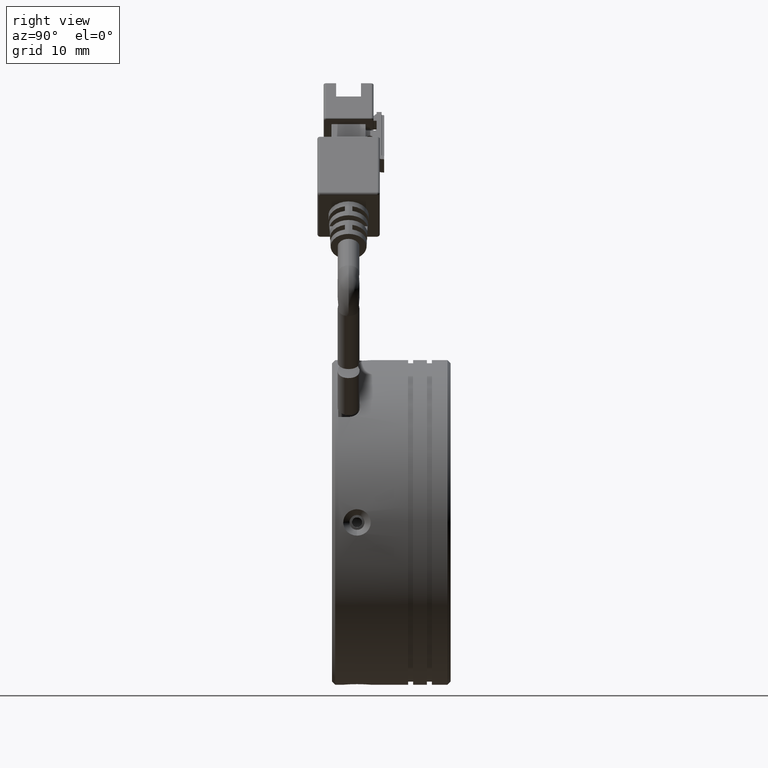
[diagram: clean part render]
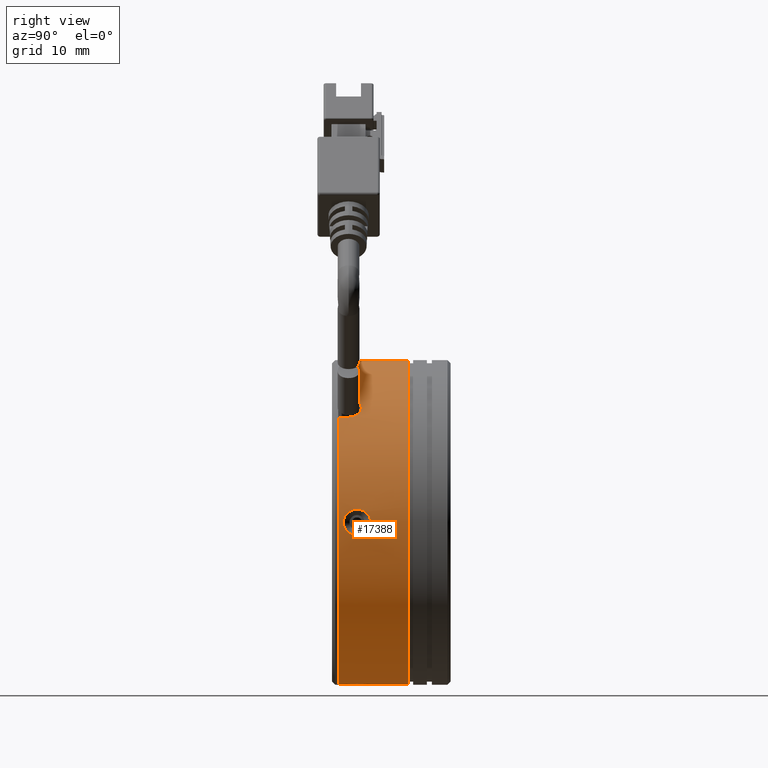
[diagram: same view with one face highlighted and labeled with its STEP entity id]
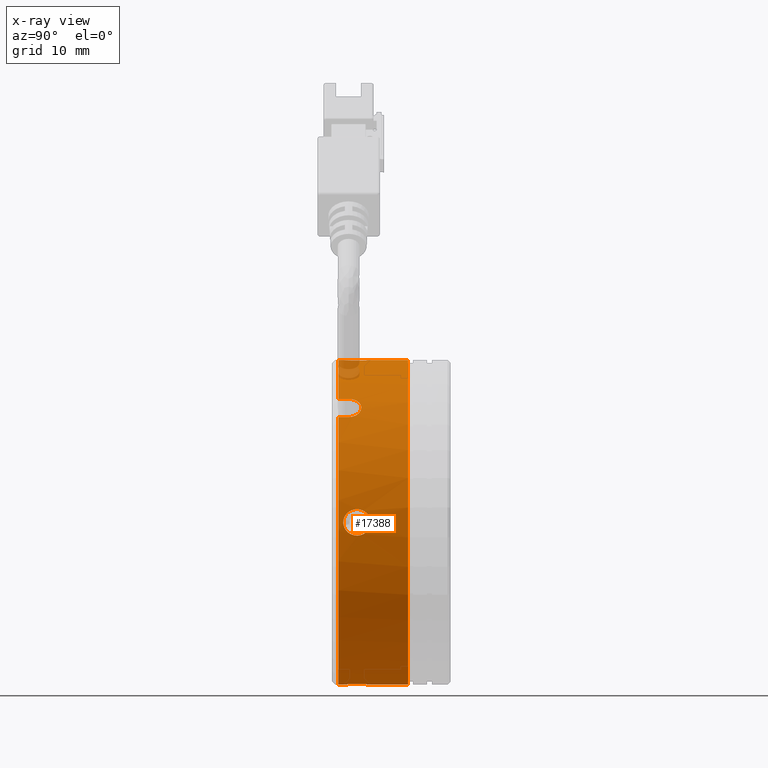
[diagram: x-ray of the same camera — body ghosted, the highlighted face saturated]
A machine part, right view. The second image highlights one B-rep face of the part: STEP entity #17388.
The next image is the same camera in x-ray: the body ghosted, the highlighted face saturated — about 2% of this face is hidden behind the body in this view.
In plain terms, the highlighted cylindrical surface (partial cylindrical patch) has radius 26 mm, axis along (-0, -1, -0).
Its self-contained STEP definition (entity closure, byte-faithful):
#4 = CARTESIAN_POINT ( 'NONE',  ( 0.5700417114842225600, -3.661755276704226100, 25.96174129452807500 ) ) ;
#29 = CARTESIAN_POINT ( 'NONE',  ( 0.7632741512655253400, -0.5833941748268457500, -25.95050076363494900 ) ) ;
#148 = CARTESIAN_POINT ( 'NONE',  ( 17.35017317992077300, -1.332335679312229200, 18.57614296503430800 ) ) ;
#279 = CARTESIAN_POINT ( 'NONE',  ( 25.07068517281820500, -2.019923829761831600, 2.113921649513059700 ) ) ;
#431 = CARTESIAN_POINT ( 'NONE',  ( 25.07900943862740200, -1.324124604772642300, 2.009934761703067600 ) ) ;
#594 = CARTESIAN_POINT ( 'NONE',  ( 25.15116355975101200, 0.1072962245698728000, -0.5570993038350605700 ) ) ;
#720 = CARTESIAN_POINT ( 'NONE',  ( 25.07068517281824800, -2.019923829761832000, -2.113921649512511300 ) ) ;
#761 = CARTESIAN_POINT ( 'NONE',  ( 25.07068517281840800, -1.877440404689787900, -2.113921649512712000 ) ) ;
#887 = CARTESIAN_POINT ( 'NONE',  ( 25.15184026195136700, -4.158879317824578900, -0.5676062594884399000 ) ) ;
#1051 = CARTESIAN_POINT ( 'NONE',  ( 25.08682708409655500, -2.980469916977110500, 1.906428505206584600 ) ) ;
#2252 = DIRECTION ( 'NONE',  ( -0.0000000000000000000, -1.000000000000000000, -0.0000000000000000000 ) ) ;
#2349 = CARTESIAN_POINT ( 'NONE',  ( -0.7007340623137251500, -4.219923829767420600, -26.00000000000000000 ) ) ;
#2524 = CARTESIAN_POINT ( 'NONE',  ( 1.257514202097226100, -2.302827202201920300, -25.91500590520640700 ) ) ;
#2562 = B_SPLINE_CURVE_WITH_KNOTS ( 'NONE', 3,
 ( #13884, #10048, #21444, #47777, #25233, #2651, #29048, #6435, #32836, #10207, #36626, #14043, #40384, #17831, #44184, #21604 ),
 .UNSPECIFIED., .F., .F.,
 ( 4, 2, 2, 2, 2, 2, 2, 4 ),
 ( 0.006753514958620318100, 0.007175384245134818600, 0.007597253531649319200, 0.008440992104678319400, 0.008862861391192820800, 0.009284730677707318800, 0.009706599964221820200, 0.01012846925073632000 ),
 .UNSPECIFIED. ) ;
#2651 = CARTESIAN_POINT ( 'NONE',  ( 0.2381175052354198300, -0.1075802680053533400, 25.97878341157911200 ) ) ;
#3283 = CARTESIAN_POINT ( 'NONE',  ( 17.91300266529334800, -1.396572323487726500, 18.00612816173481100 ) ) ;
#3810 = CARTESIAN_POINT ( 'NONE',  ( 0.2348341411667761400, -3.917505517468462100, 25.97789389347685000 ) ) ;
#3835 = CARTESIAN_POINT ( 'NONE',  ( 0.4644389933508281100, -0.2857913554150947600, -25.96734857976177200 ) ) ;
#4032 = EDGE_LOOP ( 'NONE', ( #7381, #28889 ) ) ;
#4226 = CARTESIAN_POINT ( 'NONE',  ( 25.09142205960207100, -0.9348551996306534400, 1.843666292746363600 ) ) ;
#4379 = CARTESIAN_POINT ( 'NONE',  ( 25.13974116819224500, -0.04921296226475328100, -0.9495289102050434900 ) ) ;
#4502 = CARTESIAN_POINT ( 'NONE',  ( 25.07177076299983700, -2.302595625451821200, -2.100731701423661500 ) ) ;
#4653 = CARTESIAN_POINT ( 'NONE',  ( 25.15677872803126300, -4.220118727477475000, 0.1377067721046466300 ) ) ;
#4816 = CARTESIAN_POINT ( 'NONE',  ( 25.07598192525610900, -2.582211107856319000, 2.048122727477555700 ) ) ;
#5073 = VERTEX_POINT ( 'NONE', #11354 ) ;
#6147 = CARTESIAN_POINT ( 'NONE',  ( -0.8432364767453765000, -4.219923829767406400, -26.00000000000000400 ) ) ;
#6167 = EDGE_CURVE ( 'NONE', #48007, #34595, #18276, .T. ) ;
#6312 = CARTESIAN_POINT ( 'NONE',  ( 1.270685172815217500, -2.019923829761831600, -25.91392164955970400 ) ) ;
#6435 = CARTESIAN_POINT ( 'NONE',  ( 0.7621741821133705100, -0.5821168946738781700, 25.95056767799188800 ) ) ;
#6798 = CARTESIAN_POINT ( 'NONE',  ( 16.02670005985450900, -5.019923829761827600, 19.78396424509234900 ) ) ;
#7066 = CARTESIAN_POINT ( 'NONE',  ( 18.17349000561377500, -1.536640124356303000, 17.73075292991632800 ) ) ;
#7381 = ORIENTED_EDGE ( 'NONE', *, *, #48565, .T. ) ;
#7492 = VECTOR ( 'NONE', #2252, 1000.000000000000000 ) ;
#7567 = CARTESIAN_POINT ( 'NONE',  ( 16.07731900997010000, -2.839832261796470200, 19.74070680745349500 ) ) ;
#7574 = CARTESIAN_POINT ( 'NONE',  ( -0.2756764658807898700, -4.158893288112197200, 25.99507781296181400 ) ) ;
#7599 = CARTESIAN_POINT ( 'NONE',  ( 0.1100547866131151900, -0.05123205639646109100, -25.98283634409786200 ) ) ;
#8006 = CARTESIAN_POINT ( 'NONE',  ( 25.10726322386177900, -0.5834149923285459900, 1.606527624350974100 ) ) ;
#8158 = CARTESIAN_POINT ( 'NONE',  ( 25.12430405033780500, -0.2826984153328857600, -1.303856322866068700 ) ) ;
#8281 = CARTESIAN_POINT ( 'NONE',  ( 25.07900943862742700, -2.715723054750402100, -2.009934761702721700 ) ) ;
#8450 = CARTESIAN_POINT ( 'NONE',  ( 25.15116355975102300, -4.147143884093919700, 0.5570993038342602100 ) ) ;
#8550 = EDGE_CURVE ( 'NONE', #40858, #25983, #21827, .T. ) ;
#8623 = CARTESIAN_POINT ( 'NONE',  ( 25.07068517281202700, -2.162364752792359700, 2.113921649515198500 ) ) ;
#8659 = CARTESIAN_POINT ( 'NONE',  ( -0.8432364767453765000, 6.180076170238170800, 0.0000000000000000000 ) ) ;
#9039 = LINE ( 'NONE', #32684, #26765 ) ;
#9934 = CARTESIAN_POINT ( 'NONE',  ( -0.1485429309996705300, -4.102678716444987800, -25.99103748164974800 ) ) ;
#10048 = CARTESIAN_POINT ( 'NONE',  ( -0.7007340623137375800, 0.1800761702435598200, 26.00000000000000000 ) ) ;
#10207 = CARTESIAN_POINT ( 'NONE',  ( 1.000167844944690700, -0.9342284771793206700, 25.93467912144212000 ) ) ;
#10842 = CARTESIAN_POINT ( 'NONE',  ( 18.40497477395977900, -1.745375409736210900, 17.47909849503531300 ) ) ;
#11010 = CARTESIAN_POINT ( 'NONE',  ( -0.8432364767453733900, -5.019923829761831200, 26.00000000000000400 ) ) ;
#11208 = CARTESIAN_POINT ( 'NONE',  ( 1.257494776038846400, -2.302600439658064600, 25.91500727700114100 ) ) ;
#11237 = CARTESIAN_POINT ( 'NONE',  ( 1.270685172815382700, -1.877459211881043600, -25.91392164955969000 ) ) ;
#11351 = CARTESIAN_POINT ( 'NONE',  ( 16.18688842422260500, -2.462584212436573300, 19.64631195997596100 ) ) ;
#11354 = CARTESIAN_POINT ( 'NONE',  ( -0.8432364767453733900, 0.1800761702435610400, 26.00000000000000400 ) ) ;
#11363 = CARTESIAN_POINT ( 'NONE',  ( -0.8432364767453733900, -4.219923829767225200, 26.00000000000000400 ) ) ;
#11381 = CARTESIAN_POINT ( 'NONE',  ( -0.5580454620580992400, 0.1800761702437680700, -26.00000000000000400 ) ) ;
#11784 = CARTESIAN_POINT ( 'NONE',  ( 25.12411077824685900, -0.2858128282905767500, 1.307701463511026900 ) ) ;
#11925 = CARTESIAN_POINT ( 'NONE',  ( 1.270685172814882200, -2.019923829761832000, 25.91392164955973200 ) ) ;
#11949 = CARTESIAN_POINT ( 'NONE',  ( 25.10731845625776200, -0.5822697731580392900, -1.605702992193580400 ) ) ;
#12078 = CARTESIAN_POINT ( 'NONE',  ( 25.09142205960208800, -3.104992459892392800, -1.843666292746150200 ) ) ;
#12237 = CARTESIAN_POINT ( 'NONE',  ( 25.13974116819227300, -3.990634697259623800, 0.9495289102042204800 ) ) ;
#12447 = DIRECTION ( 'NONE',  ( 0.0000000000000000000, 0.0000000000000000000, -1.000000000000000000 ) ) ;
#12955 = DIRECTION ( 'NONE',  ( 0.0000000000000000000, 1.000000000000000000, 0.0000000000000000000 ) ) ;
#13355 = EDGE_CURVE ( 'NONE', #29738, #46985, #39323, .T. ) ;
#13753 = CARTESIAN_POINT ( 'NONE',  ( 0.4732562434826336200, -3.764367437101978600, -25.96736551312134000 ) ) ;
#13884 = CARTESIAN_POINT ( 'NONE',  ( -0.8432364767453733900, 0.1800761702435610400, 26.00000000000000400 ) ) ;
#13910 = VERTEX_POINT ( 'NONE', #47461 ) ;
#13939 = DIRECTION ( 'NONE',  ( -0.0000000000000000000, -1.000000000000000000, -0.0000000000000000000 ) ) ;
#14043 = CARTESIAN_POINT ( 'NONE',  ( 1.165868342122063500, -1.321731564562086600, 25.92230973960485600 ) ) ;
#14543 = CARTESIAN_POINT ( 'NONE',  ( -0.8432364767453765000, -5.019923829761831200, 0.0000000000000000000 ) ) ;
#14665 = CARTESIAN_POINT ( 'NONE',  ( 18.60346495581549300, -2.018245760449369500, 17.25789427479638100 ) ) ;
#14853 = ORIENTED_EDGE ( 'NONE', *, *, #8550, .T. ) ;
#15022 = CARTESIAN_POINT ( 'NONE',  ( 16.02670272175023300, -3.234566924000275000, 19.78396197527363800 ) ) ;
#15037 = CARTESIAN_POINT ( 'NONE',  ( 1.166694670216930700, -2.715734830182291200, 25.92224619903235100 ) ) ;
#15062 = CARTESIAN_POINT ( 'NONE',  ( 1.205738756102252800, -1.461155198372313000, -25.91915072795833600 ) ) ;
#15137 = VECTOR ( 'NONE', #24207, 1000.000000000000000 ) ;
#15188 = CARTESIAN_POINT ( 'NONE',  ( 16.34851711512582600, -2.123712759211537000, 19.50510933334414800 ) ) ;
#15469 = CARTESIAN_POINT ( 'NONE',  ( 25.07068517281199500, -1.877461657298543600, 2.113921649515466700 ) ) ;
#15623 = CARTESIAN_POINT ( 'NONE',  ( 25.13959851331737700, -0.05125137742007224200, 0.9533277286991627100 ) ) ;
#15783 = CARTESIAN_POINT ( 'NONE',  ( 25.09154899582771800, -0.9315781296035328100, -1.841891277883847900 ) ) ;
#15899 = CARTESIAN_POINT ( 'NONE',  ( 25.10726322386177500, -3.456432667194466300, -1.606527624350964500 ) ) ;
#16059 = CARTESIAN_POINT ( 'NONE',  ( 25.12430405033785200, -3.757149244191791700, 1.303856322865365900 ) ) ;
#16096 = CIRCLE ( 'NONE', #48112, 26.00000000000000400 ) ;
#16500 = CARTESIAN_POINT ( 'NONE',  ( -0.8432364767453765000, -21.81214605198405500, 0.0000000000000000000 ) ) ;
#16667 = VERTEX_POINT ( 'NONE', #11925 ) ;
#16794 = VERTEX_POINT ( 'NONE', #27908 ) ;
#17388 = ADVANCED_FACE ( 'NONE', ( #47102, #25892 ), #41201, .T. ) ;
#17539 = CARTESIAN_POINT ( 'NONE',  ( 0.8492483316489235500, -3.345212303749423900, -25.94496513388958200 ) ) ;
#17678 = EDGE_CURVE ( 'NONE', #24699, #29738, #24637, .T. ) ;
#17831 = CARTESIAN_POINT ( 'NONE',  ( 1.257514202096895900, -1.737020457321812000, 25.91500590520644200 ) ) ;
#17901 = ORIENTED_EDGE ( 'NONE', *, *, #35157, .T. ) ;
#18276 = B_SPLINE_CURVE_WITH_KNOTS ( 'NONE', 3,
 ( #6147, #2349, #28587, #32526, #9934, #36341, #13753, #40095, #17539, #43892, #21325, #47653, #25116, #2524, #28917, #6312 ),
 .UNSPECIFIED., .F., .F.,
 ( 4, 2, 2, 2, 2, 2, 2, 4 ),
 ( 0.006753514958620414300, 0.007175384245134964300, 0.007597253531649515200, 0.008440992104678616100, 0.008862861391193166100, 0.009284730677707716100, 0.009706599964222266000, 0.01012846925073681600 ),
 .UNSPECIFIED. ) ;
#18321 = DIRECTION ( 'NONE',  ( 0.0000000000000000000, 0.0000000000000000000, -1.000000000000000000 ) ) ;
#18391 = B_SPLINE_CURVE_WITH_KNOTS ( 'NONE', 3,
 ( #720, #27100, #4502, #30895, #8281, #34670, #12078, #38486, #15899, #42255, #19659, #46035, #23449, #887, #27266, #4653, #31054, #8450, #34832, #12237, #38644, #16059, #42399, #19831, #46188, #23613, #1051, #27429, #4816, #31209, #8623, #34996 ),
 .UNSPECIFIED., .F., .F.,
 ( 4, 2, 2, 2, 2, 2, 2, 2, 2, 2, 2, 2, 2, 2, 2, 4 ),
 ( 0.006741237624474340900, 0.007162502131468436200, 0.007583766638462531600, 0.008005031145456626900, 0.008426295652450722200, 0.008847560159444817600, 0.009268824666438912900, 0.01011135368042710200, 0.01053261818742119700, 0.01095388269441529200, 0.01137514720140938800, 0.01179641170840348300, 0.01221767621539757800, 0.01263894072239167600, 0.01306020522938577100, 0.01348146973637986600 ),
 .UNSPECIFIED. ) ;
#18456 = CARTESIAN_POINT ( 'NONE',  ( 18.76019152623937800, -2.342651397870176400, 17.07955972849781300 ) ) ;
#18804 = CARTESIAN_POINT ( 'NONE',  ( 1.000420750988469900, -3.105009465236219200, 25.93465918797013700 ) ) ;
#18828 = CARTESIAN_POINT ( 'NONE',  ( 1.063620647744090800, -1.060246755420360100, -25.93003214663569300 ) ) ;
#18952 = CARTESIAN_POINT ( 'NONE',  ( 16.62714989401206700, -1.738342978114982200, 19.25673694829415100 ) ) ;
#19241 = CARTESIAN_POINT ( 'NONE',  ( -0.8432364767453765000, -4.219923829767406400, -26.00000000000000400 ) ) ;
#19255 = VECTOR ( 'NONE', #13939, 1000.000000000000000 ) ;
#19258 = EDGE_CURVE ( 'NONE', #13910, #5073, #40596, .T. ) ;
#19375 = CARTESIAN_POINT ( 'NONE',  ( 25.15673264790216700, 0.1796804039530937000, 0.2839379019657914900 ) ) ;
#19387 = EDGE_CURVE ( 'NONE', #25983, #40224, #21116, .T. ) ;
#19535 = CARTESIAN_POINT ( 'NONE',  ( 25.07905077566601200, -1.322527728961460300, -2.009400288204657300 ) ) ;
#19659 = CARTESIAN_POINT ( 'NONE',  ( 25.12411077824684800, -3.754034831232509400, -1.307701463511183000 ) ) ;
#19831 = CARTESIAN_POINT ( 'NONE',  ( 25.10731845625780100, -3.457577886366958200, 1.605702992193027000 ) ) ;
#19917 = VECTOR ( 'NONE', #34445, 1000.000000000000000 ) ;
#19951 = CARTESIAN_POINT ( 'NONE',  ( 18.94072776834691400, -5.019923829761827600, 16.86993653659994800 ) ) ;
#20403 = CARTESIAN_POINT ( 'NONE',  ( -0.8432364767453765000, -21.81214605198405500, -26.00000000000000400 ) ) ;
#21116 = LINE ( 'NONE', #38239, #19917 ) ;
#21300 = ORIENTED_EDGE ( 'NONE', *, *, #44656, .T. ) ;
#21325 = CARTESIAN_POINT ( 'NONE',  ( 1.063312703427903700, -2.980120379278099500, -25.93005427361827800 ) ) ;
#21444 = CARTESIAN_POINT ( 'NONE',  ( -0.5606644785951457900, 0.1652119300586016600, 25.99882938785115300 ) ) ;
#21604 = CARTESIAN_POINT ( 'NONE',  ( 1.270685172814882200, -2.019923829761832000, 25.91392164955973200 ) ) ;
#21661 = CARTESIAN_POINT ( 'NONE',  ( 18.94072776834691400, -21.81214605198405500, 16.86993653659995100 ) ) ;
#21827 = CIRCLE ( 'NONE', #47375, 26.00000000000000400 ) ;
#21895 = CARTESIAN_POINT ( 'NONE',  ( 17.63724383699600300, -1.332332311667882500, 18.28907230795908800 ) ) ;
#22221 = CARTESIAN_POINT ( 'NONE',  ( 18.90476971852949700, -2.830303678248056600, 16.91233520536058800 ) ) ;
#22573 = CARTESIAN_POINT ( 'NONE',  ( 0.7632741512652819700, -3.456453484696639000, 25.95050076363496000 ) ) ;
#22590 = CARTESIAN_POINT ( 'NONE',  ( 0.8508458743836855300, -0.6969658875406915500, -25.94485891572996600 ) ) ;
#22719 = CARTESIAN_POINT ( 'NONE',  ( 17.15681943959830500, -1.385776986722936400, 18.76323631182730300 ) ) ;
#22992 = CARTESIAN_POINT ( 'NONE',  ( 25.07591407511031200, -1.461164601604376400, 2.048977449278429000 ) ) ;
#22996 = ORIENTED_EDGE ( 'NONE', *, *, #34632, .T. ) ;
#23037 = VERTEX_POINT ( 'NONE', #23459 ) ;
#23154 = CARTESIAN_POINT ( 'NONE',  ( 25.15562427119898100, 0.1656171014092065500, -0.2800583880823526200 ) ) ;
#23252 = ORIENTED_EDGE ( 'NONE', *, *, #48847, .F. ) ;
#23330 = CARTESIAN_POINT ( 'NONE',  ( 25.07179279545793400, -1.734811959608368900, -2.100463543675002300 ) ) ;
#23449 = CARTESIAN_POINT ( 'NONE',  ( 25.13959851331736300, -3.988596282103108700, -0.9533277286995313100 ) ) ;
#23459 = CARTESIAN_POINT ( 'NONE',  ( -0.8432364767453807100, 0.1800761702437439500, -26.00000000000000400 ) ) ;
#23613 = CARTESIAN_POINT ( 'NONE',  ( 25.09154899582774700, -3.108269529921738900, 1.841891277883513700 ) ) ;
#23706 = VERTEX_POINT ( 'NONE', #33618 ) ;
#23857 = CARTESIAN_POINT ( 'NONE',  ( -0.8432364767453733900, -4.219923829767225200, 26.00000000000000400 ) ) ;
#24207 = DIRECTION ( 'NONE',  ( -0.0000000000000000000, -1.000000000000000000, -0.0000000000000000000 ) ) ;
#24637 = B_SPLINE_CURVE_WITH_KNOTS ( 'NONE', 3,
 ( #25856, #21895, #37087, #3283, #29688, #7066, #33451, #10842, #37246, #14665, #41008, #18456, #44796, #22221, #48570, #26018 ),
 .UNSPECIFIED., .F., .F.,
 ( 4, 2, 2, 2, 2, 2, 2, 4 ),
 ( 0.0000000000000000000, 0.0004002738731357412100, 0.0008005477462714824100, 0.001200821619407223600, 0.001601095492542964800, 0.002001369365678705900, 0.002401643238814447100, 0.003202190985085926600 ),
 .UNSPECIFIED. ) ;
#24699 = VERTEX_POINT ( 'NONE', #47651 ) ;
#24844 = CARTESIAN_POINT ( 'NONE',  ( -0.8432364767453733900, -21.81214605198405500, 26.00000000000000400 ) ) ;
#25116 = CARTESIAN_POINT ( 'NONE',  ( 1.205355855722643100, -2.580402335998146100, -25.91918119726959100 ) ) ;
#25233 = CARTESIAN_POINT ( 'NONE',  ( -0.1485429309997573800, 0.06283105692110259300, 25.99103748164975500 ) ) ;
#25336 = ORIENTED_EDGE ( 'NONE', *, *, #6167, .T. ) ;
#25856 = CARTESIAN_POINT ( 'NONE',  ( 17.54153983410482800, -1.332328671300404800, 18.38477631085026000 ) ) ;
#25892 = FACE_OUTER_BOUND ( 'NONE', #42665, .T. ) ;
#25983 = VERTEX_POINT ( 'NONE', #6798 ) ;
#26018 = CARTESIAN_POINT ( 'NONE',  ( 18.94072776834691800, -3.369923829761829000, 16.86993653659994800 ) ) ;
#26047 = CARTESIAN_POINT ( 'NONE',  ( 1.270685172815217500, -2.019923829761831600, -25.91392164955970400 ) ) ;
#26062 = CARTESIAN_POINT ( 'NONE',  ( -0.8432364767453733900, -21.81214605198405500, 26.00000000000000400 ) ) ;
#26109 = EDGE_CURVE ( 'NONE', #34595, #23037, #32553, .T. ) ;
#26319 = LINE ( 'NONE', #20403, #15137 ) ;
#26386 = CARTESIAN_POINT ( 'NONE',  ( 0.4644389933506099500, -3.754056304108383600, 25.96734857976179000 ) ) ;
#26409 = CARTESIAN_POINT ( 'NONE',  ( 0.5700417114844571500, -0.3780923828192620000, -25.96174129452805300 ) ) ;
#26541 = CARTESIAN_POINT ( 'NONE',  ( 17.54153983410482800, -1.332328671300404800, 18.38477631085026000 ) ) ;
#26765 = VECTOR ( 'NONE', #44052, 1000.000000000000000 ) ;
#26814 = CARTESIAN_POINT ( 'NONE',  ( 25.08679515168391600, -1.060262155748592700, 1.906864125211825700 ) ) ;
#26979 = CARTESIAN_POINT ( 'NONE',  ( 25.14790279979051500, 0.06420544864425294100, -0.6909497495165105600 ) ) ;
#27100 = CARTESIAN_POINT ( 'NONE',  ( 25.07068517281841500, -2.162386002227341600, -2.113921649512678700 ) ) ;
#27140 = CARTESIAN_POINT ( 'NONE',  ( 25.07068517281824800, -2.019923829761832000, -2.113921649512511300 ) ) ;
#27266 = CARTESIAN_POINT ( 'NONE',  ( 25.15673264790216400, -4.219528063476581700, -0.2839379019664302100 ) ) ;
#27419 = ORIENTED_EDGE ( 'NONE', *, *, #19258, .T. ) ;
#27429 = CARTESIAN_POINT ( 'NONE',  ( 25.07905077566601200, -2.717319930564032800, 2.009400288204616900 ) ) ;
#27836 = EDGE_CURVE ( 'NONE', #23706, #23037, #26319, .T. ) ;
#27908 = CARTESIAN_POINT ( 'NONE',  ( 25.07068517281824800, -2.019923829761832000, -2.113921649512511300 ) ) ;
#28428 = ORIENTED_EDGE ( 'NONE', *, *, #38714, .T. ) ;
#28587 = CARTESIAN_POINT ( 'NONE',  ( -0.5606644785951154800, -4.205059589582468500, -25.99882938785115300 ) ) ;
#28889 = ORIENTED_EDGE ( 'NONE', *, *, #35092, .T. ) ;
#28917 = CARTESIAN_POINT ( 'NONE',  ( 1.270685172815048800, -2.162275743551041400, -25.91392164955971800 ) ) ;
#29048 = CARTESIAN_POINT ( 'NONE',  ( 0.4732562434824554300, -0.2754802224219065100, 25.96736551312135400 ) ) ;
#29688 = CARTESIAN_POINT ( 'NONE',  ( 18.00289704761946300, -1.435286312553803100, 17.91197188330776100 ) ) ;
#29738 = VERTEX_POINT ( 'NONE', #35279 ) ;
#29895 = DIRECTION ( 'NONE',  ( -0.0000000000000000000, -1.000000000000000000, -0.0000000000000000000 ) ) ;
#29991 = EDGE_CURVE ( 'NONE', #16667, #33174, #42960, .T. ) ;
#30051 = CARTESIAN_POINT ( 'NONE',  ( 1.270685172814882200, -2.019923829761832000, 25.91392164955973200 ) ) ;
#30078 = CARTESIAN_POINT ( 'NONE',  ( 1.270685172815217500, -2.019923829761831600, -25.91392164955970400 ) ) ;
#30202 = CARTESIAN_POINT ( 'NONE',  ( 16.03701491091293000, -3.101515728352455700, 19.77518182789524200 ) ) ;
#30214 = CARTESIAN_POINT ( 'NONE',  ( 0.1100547866129728300, -3.988615603126993000, 25.98283634409786600 ) ) ;
#30234 = CARTESIAN_POINT ( 'NONE',  ( 0.2348341411669275800, -0.1223421420549828000, -25.97789389347683900 ) ) ;
#30618 = CARTESIAN_POINT ( 'NONE',  ( 25.10162151490921200, -0.6969856302072465800, 1.694096393014742400 ) ) ;
#30782 = CARTESIAN_POINT ( 'NONE',  ( 25.13481377502914800, -0.1200404224817431400, -1.074293932154277000 ) ) ;
#30895 = CARTESIAN_POINT ( 'NONE',  ( 25.07591407511034000, -2.578683057918745600, -2.048977449278014600 ) ) ;
#31054 = CARTESIAN_POINT ( 'NONE',  ( 25.15562427119899200, -4.205464760933062400, 0.2800583880815293900 ) ) ;
#31209 = CARTESIAN_POINT ( 'NONE',  ( 25.07179279545791300, -2.305035699917345100, 2.100463543675290500 ) ) ;
#32193 = ORIENTED_EDGE ( 'NONE', *, *, #17678, .T. ) ;
#32404 = CARTESIAN_POINT ( 'NONE',  ( 25.07068517281820500, -2.019923829761831600, 2.113921649513059700 ) ) ;
#32526 = CARTESIAN_POINT ( 'NONE',  ( -0.2851902432069565700, -4.146818997786145800, -25.99437556230126500 ) ) ;
#32553 = B_SPLINE_CURVE_WITH_KNOTS ( 'NONE', 3,
 ( #30078, #11237, #37624, #15062, #41386, #18828, #45162, #22590, #29, #26409, #3835, #30234, #7599, #33996, #11381, #37780 ),
 .UNSPECIFIED., .F., .F.,
 ( 4, 2, 2, 2, 2, 2, 2, 4 ),
 ( 0.01012846925073681600, 0.01055067254327701600, 0.01097287583581721600, 0.01139507912835741600, 0.01181728242089761400, 0.01223948571343781400, 0.01266168900597801400, 0.01350609559105841300 ),
 .UNSPECIFIED. ) ;
#32684 = CARTESIAN_POINT ( 'NONE',  ( -0.8432364767453765000, -21.81214605198405500, -26.00000000000000400 ) ) ;
#32836 = CARTESIAN_POINT ( 'NONE',  ( 0.8492483316486786300, -0.6946353557744289200, 25.94496513388960000 ) ) ;
#33174 = VERTEX_POINT ( 'NONE', #23857 ) ;
#33451 = CARTESIAN_POINT ( 'NONE',  ( 18.25381622242281000, -1.598695234550849800, 17.64412363241969200 ) ) ;
#33618 = CARTESIAN_POINT ( 'NONE',  ( -0.8432364767453765000, 6.180076170238170800, -26.00000000000000400 ) ) ;
#33629 = CARTESIAN_POINT ( 'NONE',  ( 16.02670005985450900, -3.369923829761832600, 19.78396424509234600 ) ) ;
#33810 = CARTESIAN_POINT ( 'NONE',  ( 1.270685172814881600, -2.162388447645285300, 25.91392164955974000 ) ) ;
#33961 = CARTESIAN_POINT ( 'NONE',  ( 16.10782138529539200, -2.709812296531998000, 19.71457240543172100 ) ) ;
#33973 = CARTESIAN_POINT ( 'NONE',  ( -0.5579665352354457000, -4.219923829767207500, 26.00000000000001400 ) ) ;
#33996 = CARTESIAN_POINT ( 'NONE',  ( -0.2756764658806839000, 0.1190456285887361400, -25.99507781296181400 ) ) ;
#34392 = CARTESIAN_POINT ( 'NONE',  ( 25.11850356548056600, -0.3781138539180618500, 1.413300993736613700 ) ) ;
#34445 = DIRECTION ( 'NONE',  ( 0.0000000000000000000, 1.000000000000000000, 0.0000000000000000000 ) ) ;
#34460 = ORIENTED_EDGE ( 'NONE', *, *, #27836, .F. ) ;
#34480 = EDGE_CURVE ( 'NONE', #5073, #16667, #2562, .T. ) ;
#34552 = CARTESIAN_POINT ( 'NONE',  ( 25.11867407071945000, -0.3751387904342835500, -1.410242587425131200 ) ) ;
#34595 = VERTEX_POINT ( 'NONE', #26047 ) ;
#34632 = EDGE_CURVE ( 'NONE', #40224, #24699, #48349, .T. ) ;
#34670 = CARTESIAN_POINT ( 'NONE',  ( 25.08679515168393700, -2.979585503774460100, -1.906864125211564800 ) ) ;
#34832 = CARTESIAN_POINT ( 'NONE',  ( 25.14790279979053600, -4.104053108168400900, 0.6909497495157087600 ) ) ;
#34996 = CARTESIAN_POINT ( 'NONE',  ( 25.07068517281820500, -2.019923829761831600, 2.113921649513059700 ) ) ;
#35035 = DIRECTION ( 'NONE',  ( -0.0000000000000000000, -1.000000000000000000, -0.0000000000000000000 ) ) ;
#35092 = EDGE_CURVE ( 'NONE', #42804, #16794, #40790, .T. ) ;
#35157 = EDGE_CURVE ( 'NONE', #23706, #13910, #16096, .T. ) ;
#35279 = CARTESIAN_POINT ( 'NONE',  ( 18.94072776834691800, -3.369923829761829000, 16.86993653659994800 ) ) ;
#35549 = CARTESIAN_POINT ( 'NONE',  ( -0.8432364767453765000, -5.019923829761831200, 0.0000000000000000000 ) ) ;
#36341 = CARTESIAN_POINT ( 'NONE',  ( 0.2381175052355625800, -3.932267391518537100, -25.97878341157910900 ) ) ;
#36418 = LINE ( 'NONE', #24844, #7492 ) ;
#36626 = CARTESIAN_POINT ( 'NONE',  ( 1.063312703427619300, -1.059727280245722300, 25.93005427361830300 ) ) ;
#36833 = ORIENTED_EDGE ( 'NONE', *, *, #26109, .T. ) ;
#37087 = CARTESIAN_POINT ( 'NONE',  ( 17.73062396221211000, -1.345387136655783200, 18.19419870519981700 ) ) ;
#37246 = CARTESIAN_POINT ( 'NONE',  ( 18.47622477903727800, -1.830941942694295000, 17.40021632605548500 ) ) ;
#37594 = AXIS2_PLACEMENT_3D ( 'NONE', #14543, #40884, #18321 ) ;
#37604 = CARTESIAN_POINT ( 'NONE',  ( 1.205738756101919100, -2.578692461151305300, 25.91915072795836000 ) ) ;
#37624 = CARTESIAN_POINT ( 'NONE',  ( 1.257494776039186600, -1.737247219865599500, -25.91500727700112000 ) ) ;
#37746 = CARTESIAN_POINT ( 'NONE',  ( 16.23513418220293800, -2.345393135373116800, 19.60446217841485600 ) ) ;
#37780 = CARTESIAN_POINT ( 'NONE',  ( -0.8432364767453807100, 0.1800761702437439500, -26.00000000000000400 ) ) ;
#38191 = CARTESIAN_POINT ( 'NONE',  ( 25.13465602632345900, -0.1223627539936126600, 1.078103741771508500 ) ) ;
#38239 = CARTESIAN_POINT ( 'NONE',  ( 16.02670005985450900, -21.81214605198405500, 19.78396424509234900 ) ) ;
#38354 = CARTESIAN_POINT ( 'NONE',  ( 25.10177477621470400, -0.6937368021127755500, -1.691760051457732700 ) ) ;
#38486 = CARTESIAN_POINT ( 'NONE',  ( 25.10162151490921900, -3.342862029315775400, -1.694096393014655300 ) ) ;
#38644 = CARTESIAN_POINT ( 'NONE',  ( 25.13481377502918000, -3.919807237042732600, 1.074293932153496300 ) ) ;
#38714 = EDGE_CURVE ( 'NONE', #46985, #43103, #42853, .T. ) ;
#39323 = LINE ( 'NONE', #21661, #19255 ) ;
#39352 = DIRECTION ( 'NONE',  ( 0.0000000000000000000, 0.0000000000000000000, -1.000000000000000000 ) ) ;
#39434 = VECTOR ( 'NONE', #29895, 1000.000000000000000 ) ;
#39591 = AXIS2_PLACEMENT_3D ( 'NONE', #16500, #42858, #43015 ) ;
#40095 = CARTESIAN_POINT ( 'NONE',  ( 0.7621741821135980000, -3.457730764849984000, -25.95056767799187400 ) ) ;
#40224 = VERTEX_POINT ( 'NONE', #48286 ) ;
#40384 = CARTESIAN_POINT ( 'NONE',  ( 1.205355855722327200, -1.459445323525628400, 25.91918119726961200 ) ) ;
#40512 = ORIENTED_EDGE ( 'NONE', *, *, #19387, .T. ) ;
#40596 = LINE ( 'NONE', #26062, #39434 ) ;
#40790 = B_SPLINE_CURVE_WITH_KNOTS ( 'NONE', 3,
 ( #279, #15469, #45580, #22992, #431, #26814, #4226, #30618, #8006, #34392, #11784, #38191, #15623, #41964, #19375, #45743, #23154, #594, #26979, #4379, #30782, #8158, #34552, #11949, #38354, #15783, #42123, #19535, #45901, #23330, #761, #27140 ),
 .UNSPECIFIED., .F., .F.,
 ( 4, 2, 2, 2, 2, 2, 2, 2, 2, 2, 2, 2, 2, 2, 2, 4 ),
 ( 2.583180333587379100E-015, 0.0004213273515320680400, 0.0008426547030615529600, 0.001263982054591037900, 0.001685309406120522700, 0.002106636757650007200, 0.002527964109179492400, 0.003370618812238462000, 0.003791946163767946700, 0.004213273515297431500, 0.004634600866826916700, 0.005055928218356401900, 0.005477255569885886200, 0.005898582921415371400, 0.006319910272944855700, 0.006741237624474340900 ),
 .UNSPECIFIED. ) ;
#40858 = VERTEX_POINT ( 'NONE', #11010 ) ;
#40884 = DIRECTION ( 'NONE',  ( 0.0000000000000000000, 1.000000000000000000, 0.0000000000000000000 ) ) ;
#41008 = CARTESIAN_POINT ( 'NONE',  ( 18.66023424566026300, -2.120503347189903300, 17.19361450561798700 ) ) ;
#41201 = CYLINDRICAL_SURFACE ( 'NONE', #39591, 26.00000000000000400 ) ;
#41366 = CARTESIAN_POINT ( 'NONE',  ( 1.063620647743784400, -2.979600904103209700, 25.93003214663571800 ) ) ;
#41386 = CARTESIAN_POINT ( 'NONE',  ( 1.166694670217238700, -1.324112829341269400, -25.92224619903233300 ) ) ;
#41516 = CARTESIAN_POINT ( 'NONE',  ( 16.41403408037746900, -2.019193144098852400, 19.44725410895062400 ) ) ;
#41964 = CARTESIAN_POINT ( 'NONE',  ( 25.15184026195138100, 0.1190316583012300300, 0.5676062594879195400 ) ) ;
#42123 = CARTESIAN_POINT ( 'NONE',  ( 25.08682708409653700, -1.059377742548280000, -1.906428505206841000 ) ) ;
#42255 = CARTESIAN_POINT ( 'NONE',  ( 25.11850356548055500, -3.661733805605004400, -1.413300993736706000 ) ) ;
#42399 = CARTESIAN_POINT ( 'NONE',  ( 25.11867407071949300, -3.664708869090561800, 1.410242587424407100 ) ) ;
#42665 = EDGE_LOOP ( 'NONE', ( #17901, #27419, #47485, #47292, #21300, #14853, #40512, #22996, #32193, #42868, #28428, #23252, #25336, #36833, #34460 ) ) ;
#42804 = VERTEX_POINT ( 'NONE', #32404 ) ;
#42853 = CIRCLE ( 'NONE', #37594, 26.00000000000000400 ) ;
#42858 = DIRECTION ( 'NONE',  ( -0.0000000000000000000, -1.000000000000000000, -0.0000000000000000000 ) ) ;
#42868 = ORIENTED_EDGE ( 'NONE', *, *, #13355, .T. ) ;
#42960 = B_SPLINE_CURVE_WITH_KNOTS ( 'NONE', 3,
 ( #30051, #33810, #11208, #37604, #15037, #41366, #18804, #45138, #22573, #4, #26386, #3810, #30214, #7574, #33973, #11363 ),
 .UNSPECIFIED., .F., .F.,
 ( 4, 2, 2, 2, 2, 2, 2, 4 ),
 ( -0.003378561100889136900, -0.002956240963277981900, -0.002533920825666826800, -0.002111600688055672300, -0.001689280550444517300, -0.001266960412833362200, -0.0008446402752222072400, 1.040834085586084300E-016 ),
 .UNSPECIFIED. ) ;
#43015 = DIRECTION ( 'NONE',  ( 0.0000000000000000000, 0.0000000000000000000, -1.000000000000000000 ) ) ;
#43103 = VERTEX_POINT ( 'NONE', #48384 ) ;
#43892 = CARTESIAN_POINT ( 'NONE',  ( 1.000167844944962900, -3.105619182344511400, -25.93467912144210500 ) ) ;
#44052 = DIRECTION ( 'NONE',  ( -0.0000000000000000000, -1.000000000000000000, -0.0000000000000000000 ) ) ;
#44184 = CARTESIAN_POINT ( 'NONE',  ( 1.270685172814881600, -1.877611301072066100, 25.91392164955973600 ) ) ;
#44656 = EDGE_CURVE ( 'NONE', #33174, #40858, #36418, .T. ) ;
#44796 = CARTESIAN_POINT ( 'NONE',  ( 18.80275340027496600, -2.461720809362805800, 17.03049586620390000 ) ) ;
#45138 = CARTESIAN_POINT ( 'NONE',  ( 0.8508458743834159700, -3.342881771982819200, 25.94485891572998800 ) ) ;
#45162 = CARTESIAN_POINT ( 'NONE',  ( 1.000420750988773900, -0.9348381942873361700, -25.93465918797012300 ) ) ;
#45296 = CARTESIAN_POINT ( 'NONE',  ( 16.79697982537316700, -1.587522834681696700, 19.10193232894109300 ) ) ;
#45580 = CARTESIAN_POINT ( 'NONE',  ( 25.07177076299978700, -1.737252034071502100, 2.100731701424169100 ) ) ;
#45743 = CARTESIAN_POINT ( 'NONE',  ( 25.15677872803124900, 0.1802710679537243800, -0.1377067721053990300 ) ) ;
#45901 = CARTESIAN_POINT ( 'NONE',  ( 25.07598192525611200, -1.457636551669238200, -2.048122727477491800 ) ) ;
#46035 = CARTESIAN_POINT ( 'NONE',  ( 25.13465602632342700, -3.917484905529514000, -1.078103741771826200 ) ) ;
#46188 = CARTESIAN_POINT ( 'NONE',  ( 25.10177477621473900, -3.346110857412303300, 1.691760051457251900 ) ) ;
#46985 = VERTEX_POINT ( 'NONE', #19951 ) ;
#47102 = FACE_BOUND ( 'NONE', #4032, .T. ) ;
#47292 = ORIENTED_EDGE ( 'NONE', *, *, #29991, .T. ) ;
#47375 = AXIS2_PLACEMENT_3D ( 'NONE', #35549, #12955, #39352 ) ;
#47461 = CARTESIAN_POINT ( 'NONE',  ( -0.8432364767453733900, 6.180076170238170800, 26.00000000000000400 ) ) ;
#47485 = ORIENTED_EDGE ( 'NONE', *, *, #34480, .T. ) ;
#47651 = CARTESIAN_POINT ( 'NONE',  ( 17.54153983410482800, -1.332328671300404800, 18.38477631085026000 ) ) ;
#47653 = CARTESIAN_POINT ( 'NONE',  ( 1.165868342122369000, -2.718116094961707100, -25.92230973960483100 ) ) ;
#47777 = CARTESIAN_POINT ( 'NONE',  ( -0.2851902432070234100, 0.1069713382622635700, 25.99437556230125400 ) ) ;
#48007 = VERTEX_POINT ( 'NONE', #19241 ) ;
#48112 = AXIS2_PLACEMENT_3D ( 'NONE', #8659, #35035, #12447 ) ;
#48286 = CARTESIAN_POINT ( 'NONE',  ( 16.02670005985450900, -3.369923829761832600, 19.78396424509234600 ) ) ;
#48349 = B_SPLINE_CURVE_WITH_KNOTS ( 'NONE', 3,
 ( #33629, #15022, #30202, #7567, #33961, #11351, #37746, #15188, #41516, #18952, #45296, #22719, #148, #26541 ),
 .UNSPECIFIED., .F., .F.,
 ( 4, 2, 2, 2, 2, 2, 4 ),
 ( 4.336808689942017700E-019, 0.0004003099695699259200, 0.0008006199391398514200, 0.001200929908709776800, 0.001601239878279702400, 0.002401859817419554000, 0.003202479756559405700 ),
 .UNSPECIFIED. ) ;
#48384 = CARTESIAN_POINT ( 'NONE',  ( -0.8432364767453765000, -5.019923829761831200, -26.00000000000000400 ) ) ;
#48565 = EDGE_CURVE ( 'NONE', #16794, #42804, #18391, .T. ) ;
#48570 = CARTESIAN_POINT ( 'NONE',  ( 18.94072344172944300, -3.099149559835742400, 16.86994161057548800 ) ) ;
#48847 = EDGE_CURVE ( 'NONE', #48007, #43103, #9039, .T. ) ;